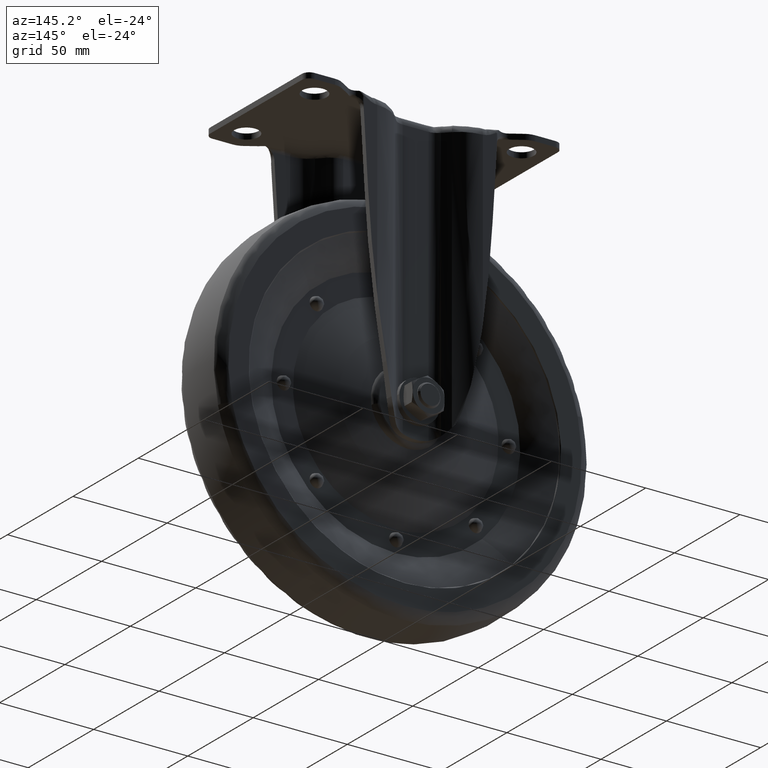
[diagram: clean part render]
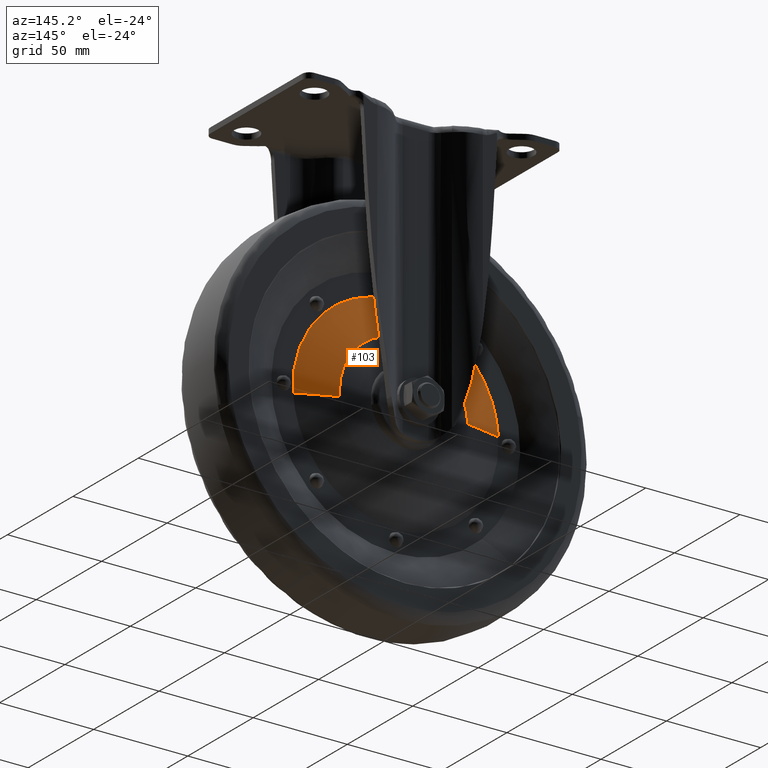
[diagram: same view with one face highlighted and labeled with its STEP entity id]
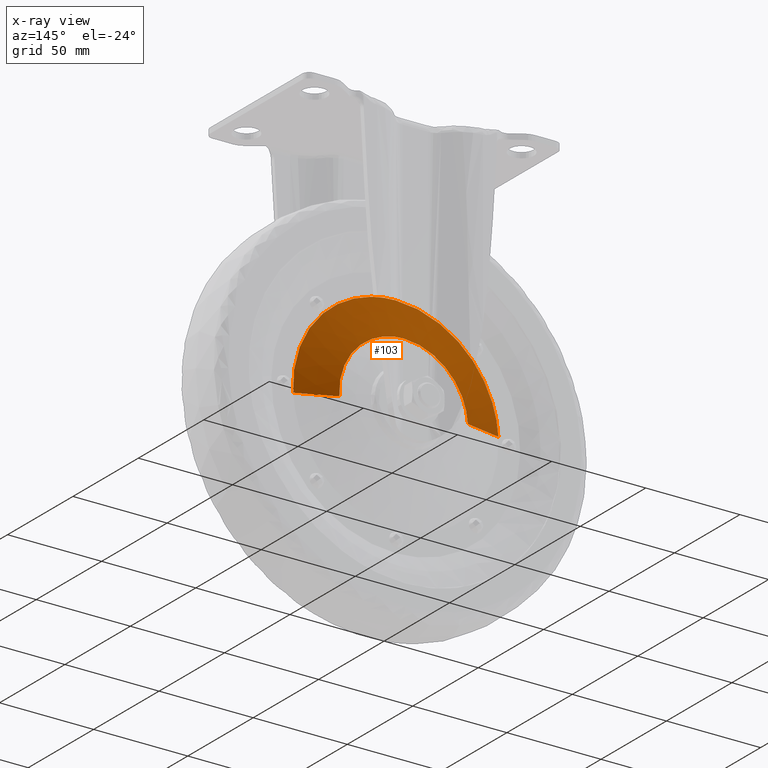
[diagram: x-ray of the same camera — body ghosted, the highlighted face saturated]
A machine part, auxiliary view. The second image highlights one B-rep face of the part: STEP entity #103.
The next image is the same camera in x-ray: the body ghosted, the highlighted face saturated — about 0% of this face is hidden behind the body in this view.
In plain terms, the highlighted face is a freeform B-spline surface patch.
Its self-contained STEP definition (entity closure, byte-faithful):
#5=CARTESIAN_POINT('',(33.640052648724193,15.154599500169089,-138.057513761996200));
#6=CARTESIAN_POINT('',(35.697566410720412,15.154599500169093,-104.417461113272030));
#7=CARTESIAN_POINT('',(2.057513761996216,15.154599500169089,-102.359947351275810));
#8=CARTESIAN_POINT('',(-31.582538886727978,15.154599500169093,-100.302433589279590));
#9=CARTESIAN_POINT('',(-33.640052648724193,15.154599500169089,-133.942486238003800));
#10=CARTESIAN_POINT('',(55.030150485595939,8.846135012495772,-139.365788190974510));
#11=CARTESIAN_POINT('',(58.395938676570431,8.846135012495772,-84.335637705378574));
#12=CARTESIAN_POINT('',(3.365788190974501,8.846135012495772,-80.969849514404061));
#13=CARTESIAN_POINT('',(-51.664362294621434,8.846135012495772,-77.604061323429548));
#14=CARTESIAN_POINT('',(-55.030150485595939,8.846135012495772,-132.634211809025490));
#22=(BOUNDED_SURFACE()B_SPLINE_SURFACE(2,1,((#5,#10),(#6,#11),(#7,#12),(#8,#13),(#9,#14)),.UNSPECIFIED.,.F.,.F.,.U.)B_SPLINE_SURFACE_WITH_KNOTS((3,2,3),(2,2),(0.0,91.347319847402389,182.694639694804810),(0.0,22.339305979477050),.UNSPECIFIED.)GEOMETRIC_REPRESENTATION_ITEM()RATIONAL_B_SPLINE_SURFACE(((1.0,1.0),(0.707106781186548,0.707106781186548),(1.0,1.0),(0.707106781186548,0.707106781186548),(1.0,1.0)))REPRESENTATION_ITEM('')SURFACE());
#23=CARTESIAN_POINT('',(34.149057118931992,15.004484576105630,-138.088645809592800));
#24=VERTEX_POINT('',#23);
#25=CARTESIAN_POINT('',(0.0,15.004487317111440,-101.787148409657900));
#26=VERTEX_POINT('',#25);
#27=CARTESIAN_POINT('',(34.149057118931985,15.004484576105625,-138.088645809592800));
#28=CARTESIAN_POINT('',(34.212871108776817,15.004484615494521,-137.045297727455050));
#29=CARTESIAN_POINT('',(34.212871121079033,15.004484657366261,-135.999999951990190));
#30=CARTESIAN_POINT('',(34.212871523733391,15.004486027838659,-101.787148386490700));
#31=CARTESIAN_POINT('',(0.0,15.004487317111440,-101.787148409657900));
#39=(BOUNDED_CURVE()B_SPLINE_CURVE(2,(#27,#28,#29,#30,#31),.UNSPECIFIED.,.F.,.U.)B_SPLINE_CURVE_WITH_KNOTS((3,2,3),(0.239332955995938,0.250000000000000,0.500000000000000),.UNSPECIFIED.)CURVE()GEOMETRIC_REPRESENTATION_ITEM()RATIONAL_B_SPLINE_CURVE((0.976072028286770,0.987502780585702,1.0,0.707106781186547,1.0))REPRESENTATION_ITEM(''));
#40=EDGE_CURVE('',#24,#26,#39,.T.);
#41=ORIENTED_EDGE('',*,*,#40,.T.);
#42=CARTESIAN_POINT('',(-34.149057118958211,15.004484576097891,-133.911354190405600));
#43=VERTEX_POINT('',#42);
#44=CARTESIAN_POINT('',(0.0,15.004487317111440,-101.787148409657900));
#45=CARTESIAN_POINT('',(-32.184254595494991,15.004485946574160,-101.787148434285340));
#46=CARTESIAN_POINT('',(-34.149057118958218,15.004484576097891,-133.911354190405600));
#54=(BOUNDED_CURVE()B_SPLINE_CURVE(2,(#44,#45,#46),.UNSPECIFIED.,.F.,.U.)B_SPLINE_CURVE_WITH_KNOTS((3,3),(0.500000000000000,0.739332955998105),.UNSPECIFIED.)CURVE()GEOMETRIC_REPRESENTATION_ITEM()RATIONAL_B_SPLINE_CURVE((1.0,0.719604000598307,0.976072028291414))REPRESENTATION_ITEM(''));
#55=EDGE_CURVE('',#26,#43,#54,.T.);
#56=ORIENTED_EDGE('',*,*,#55,.T.);
#57=CARTESIAN_POINT('',(-54.508440782267073,8.999999999995405,-132.666120941338110));
#58=VERTEX_POINT('',#57);
#59=CARTESIAN_POINT('',(-34.149057118958211,15.004484576097891,-133.911354190405600));
#60=CARTESIAN_POINT('',(-54.508440782267073,8.999999999995405,-132.666120941338110));
#61=QUASI_UNIFORM_CURVE('',1,(#59,#60),.UNSPECIFIED.,.F.,.U.);
#62=EDGE_CURVE('',#43,#58,#61,.T.);
#63=ORIENTED_EDGE('',*,*,#62,.T.);
#64=CARTESIAN_POINT('',(0.0,9.0,-81.389700000000005));
#65=VERTEX_POINT('',#64);
#66=CARTESIAN_POINT('',(0.0,9.0,-81.389700000000005));
#67=CARTESIAN_POINT('',(-51.372240525452938,8.999999999997701,-81.389699999999507));
#68=CARTESIAN_POINT('',(-54.508440782267073,8.999999999995405,-132.666120941338190));
#76=(BOUNDED_CURVE()B_SPLINE_CURVE(2,(#66,#67,#68),.UNSPECIFIED.,.F.,.U.)B_SPLINE_CURVE_WITH_KNOTS((3,3),(0.500000000000000,0.739332962241650),.UNSPECIFIED.)CURVE()GEOMETRIC_REPRESENTATION_ITEM()RATIONAL_B_SPLINE_CURVE((1.0,0.719603993283539,0.976072041672520))REPRESENTATION_ITEM(''));
#77=EDGE_CURVE('',#65,#58,#76,.T.);
#78=ORIENTED_EDGE('',*,*,#77,.F.);
#79=CARTESIAN_POINT('',(54.508440782267073,8.999999999995406,-139.333879058661890));
#80=VERTEX_POINT('',#79);
#81=CARTESIAN_POINT('',(54.508440782267080,8.999999999995406,-139.333879058661860));
#82=CARTESIAN_POINT('',(54.610300000015322,8.999999999995472,-137.668495569616250));
#83=CARTESIAN_POINT('',(54.610300000015073,8.999999999995541,-136.000000000000910));
#84=CARTESIAN_POINT('',(54.610300000007314,8.999999999997838,-81.389700000000445));
#85=CARTESIAN_POINT('',(0.0,9.0,-81.389700000000005));
#93=(BOUNDED_CURVE()B_SPLINE_CURVE(2,(#81,#82,#83,#84,#85),.UNSPECIFIED.,.F.,.U.)B_SPLINE_CURVE_WITH_KNOTS((3,2,3),(0.239332962241650,0.250000000000000,0.500000000000000),.UNSPECIFIED.)CURVE()GEOMETRIC_REPRESENTATION_ITEM()RATIONAL_B_SPLINE_CURVE((0.976072041672520,0.987502787903009,1.0,0.707106781186548,1.0))REPRESENTATION_ITEM(''));
#94=EDGE_CURVE('',#80,#65,#93,.T.);
#95=ORIENTED_EDGE('',*,*,#94,.F.);
#96=CARTESIAN_POINT('',(34.149057118931992,15.004484576105630,-138.088645809592800));
#97=CARTESIAN_POINT('',(54.508440782267073,8.999999999995406,-139.333879058661890));
#98=QUASI_UNIFORM_CURVE('',1,(#96,#97),.UNSPECIFIED.,.F.,.U.);
#99=EDGE_CURVE('',#24,#80,#98,.T.);
#100=ORIENTED_EDGE('',*,*,#99,.F.);
#101=EDGE_LOOP('',(#41,#56,#63,#78,#95,#100));
#102=FACE_OUTER_BOUND('',#101,.T.);
#103=ADVANCED_FACE('',(#102),#22,.T.);